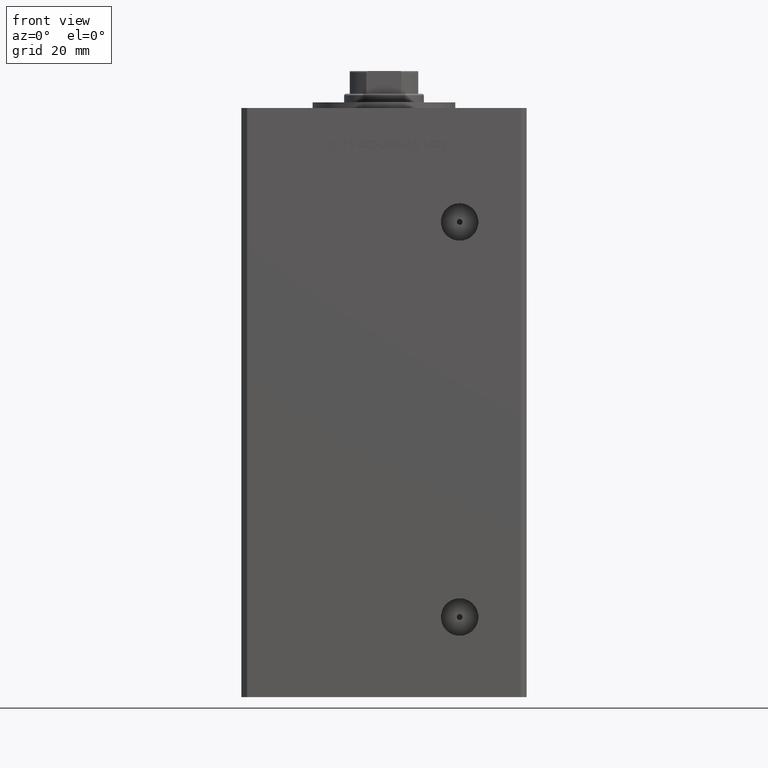
[diagram: clean part render]
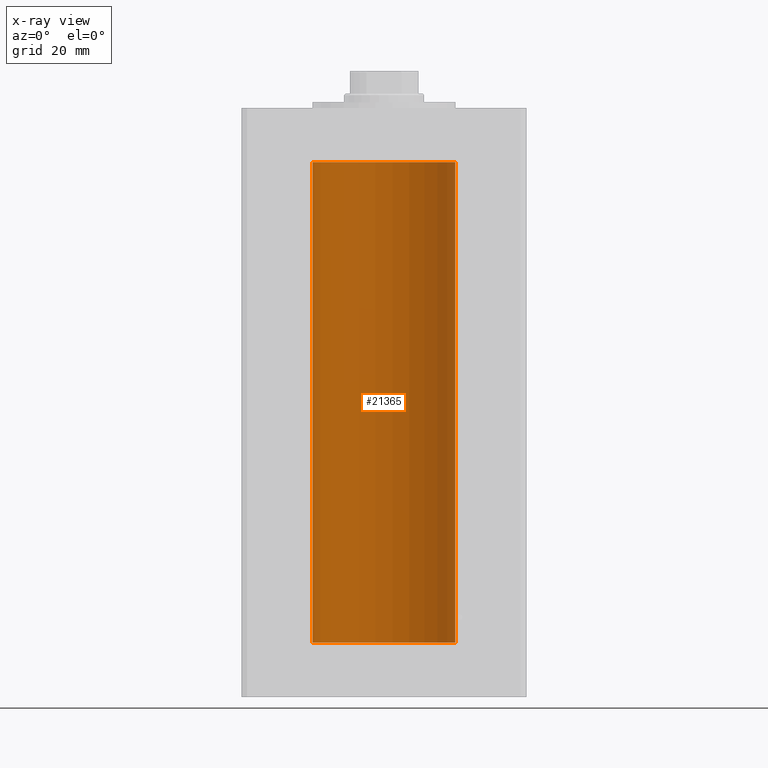
[diagram: x-ray — body ghosted, one internal face saturated and labeled with its STEP entity id]
A machine part, front view, then the same camera in x-ray: the body is ghosted and one INTERNAL B-rep face — a face not visible from any outside direction — is saturated and labeled: STEP entity #21365.
In plain terms, the highlighted cylindrical surface (partial cylindrical patch) has radius 25 mm, axis along (-0, -0, -1).
Its self-contained STEP definition (entity closure, byte-faithful):
#42 = ORIENTED_EDGE ( 'NONE', *, *, #42287, .F. ) ;
#533 = ORIENTED_EDGE ( 'NONE', *, *, #23853, .T. ) ;
#3640 = VERTEX_POINT ( 'NONE', #52169 ) ;
#4375 = ORIENTED_EDGE ( 'NONE', *, *, #49464, .T. ) ;
#6704 = CARTESIAN_POINT ( 'NONE',  ( -25.00000000000000000, 0.000000000000000000, 0.000000000000000000 ) ) ;
#8260 = DIRECTION ( 'NONE',  ( -0.000000000000000000, -0.000000000000000000, -1.000000000000000000 ) ) ;
#8901 = DIRECTION ( 'NONE',  ( -1.000000000000000000, 0.000000000000000000, 0.000000000000000000 ) ) ;
#9691 = DIRECTION ( 'NONE',  ( -0.000000000000000000, -0.000000000000000000, -1.000000000000000000 ) ) ;
#10251 = LINE ( 'NONE', #27099, #19469 ) ;
#17177 = CARTESIAN_POINT ( 'NONE',  ( 0.000000000000000000, 0.000000000000000000, 168.5000000000000000 ) ) ;
#17349 = CARTESIAN_POINT ( 'NONE',  ( 0.000000000000000000, 0.000000000000000000, 168.5000000000000000 ) ) ;
#18139 = VECTOR ( 'NONE', #8260, 1000.000000000000000 ) ;
#19469 = VECTOR ( 'NONE', #42433, 1000.000000000000000 ) ;
#21365 = ADVANCED_FACE ( 'NONE', ( #36874 ), #21808, .F. ) ;
#21599 = VERTEX_POINT ( 'NONE', #45781 ) ;
#21808 = CYLINDRICAL_SURFACE ( 'NONE', #47194, 25.00000000000000000 ) ;
#22375 = AXIS2_PLACEMENT_3D ( 'NONE', #17177, #45149, #33781 ) ;
#23677 = CARTESIAN_POINT ( 'NONE',  ( -25.00000000000000000, 0.000000000000000000, 168.5000000000000000 ) ) ;
#23853 = EDGE_CURVE ( 'NONE', #45050, #46660, #10251, .T. ) ;
#24453 = CIRCLE ( 'NONE', #42180, 25.00000000000000000 ) ;
#24588 = CARTESIAN_POINT ( 'NONE',  ( 25.00000000000000000, 3.061616997868383043E-15, 168.5000000000000000 ) ) ;
#25629 = ORIENTED_EDGE ( 'NONE', *, *, #28740, .F. ) ;
#27099 = CARTESIAN_POINT ( 'NONE',  ( -25.00000000000000000, 0.000000000000000000, 168.5000000000000000 ) ) ;
#28740 = EDGE_CURVE ( 'NONE', #21599, #46660, #24453, .T. ) ;
#33153 = CARTESIAN_POINT ( 'NONE',  ( 0.000000000000000000, 0.000000000000000000, 0.000000000000000000 ) ) ;
#33180 = EDGE_LOOP ( 'NONE', ( #42, #4375, #533, #25629 ) ) ;
#33781 = DIRECTION ( 'NONE',  ( 1.000000000000000000, 0.000000000000000000, 0.000000000000000000 ) ) ;
#36874 = FACE_OUTER_BOUND ( 'NONE', #33180, .T. ) ;
#39940 = LINE ( 'NONE', #24588, #18139 ) ;
#42180 = AXIS2_PLACEMENT_3D ( 'NONE', #33153, #45818, #49256 ) ;
#42287 = EDGE_CURVE ( 'NONE', #3640, #21599, #39940, .T. ) ;
#42433 = DIRECTION ( 'NONE',  ( -0.000000000000000000, -0.000000000000000000, -1.000000000000000000 ) ) ;
#45050 = VERTEX_POINT ( 'NONE', #23677 ) ;
#45148 = CIRCLE ( 'NONE', #22375, 25.00000000000000000 ) ;
#45149 = DIRECTION ( 'NONE',  ( -0.000000000000000000, 0.000000000000000000, 1.000000000000000000 ) ) ;
#45781 = CARTESIAN_POINT ( 'NONE',  ( 25.00000000000000000, 3.061616997868383043E-15, 0.000000000000000000 ) ) ;
#45818 = DIRECTION ( 'NONE',  ( -0.000000000000000000, 0.000000000000000000, 1.000000000000000000 ) ) ;
#46660 = VERTEX_POINT ( 'NONE', #6704 ) ;
#47194 = AXIS2_PLACEMENT_3D ( 'NONE', #17349, #9691, #8901 ) ;
#49256 = DIRECTION ( 'NONE',  ( 1.000000000000000000, 0.000000000000000000, 0.000000000000000000 ) ) ;
#49464 = EDGE_CURVE ( 'NONE', #3640, #45050, #45148, .T. ) ;
#52169 = CARTESIAN_POINT ( 'NONE',  ( 25.00000000000000000, 3.061616997868383043E-15, 168.5000000000000000 ) ) ;